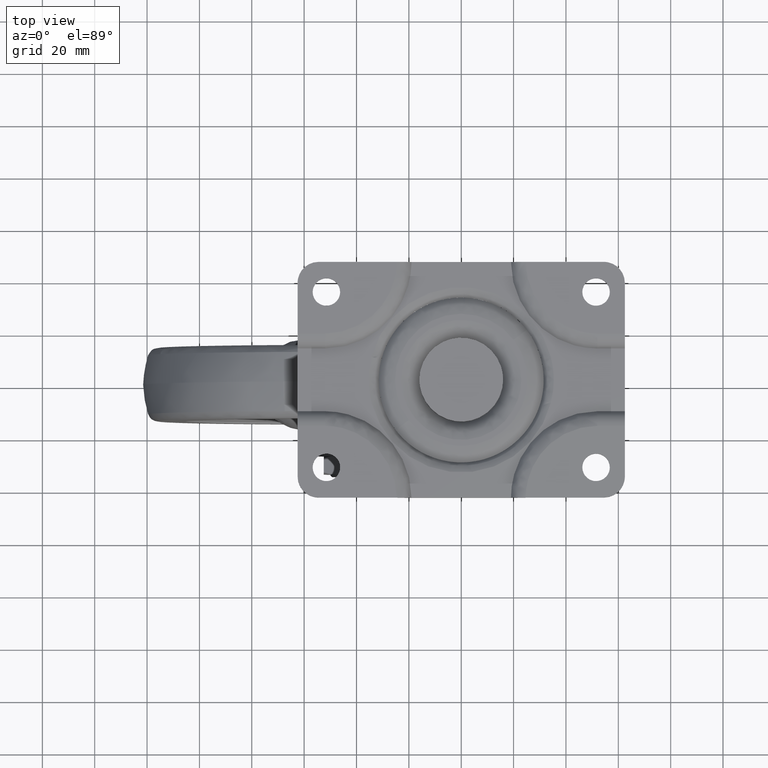
[diagram: clean part render]
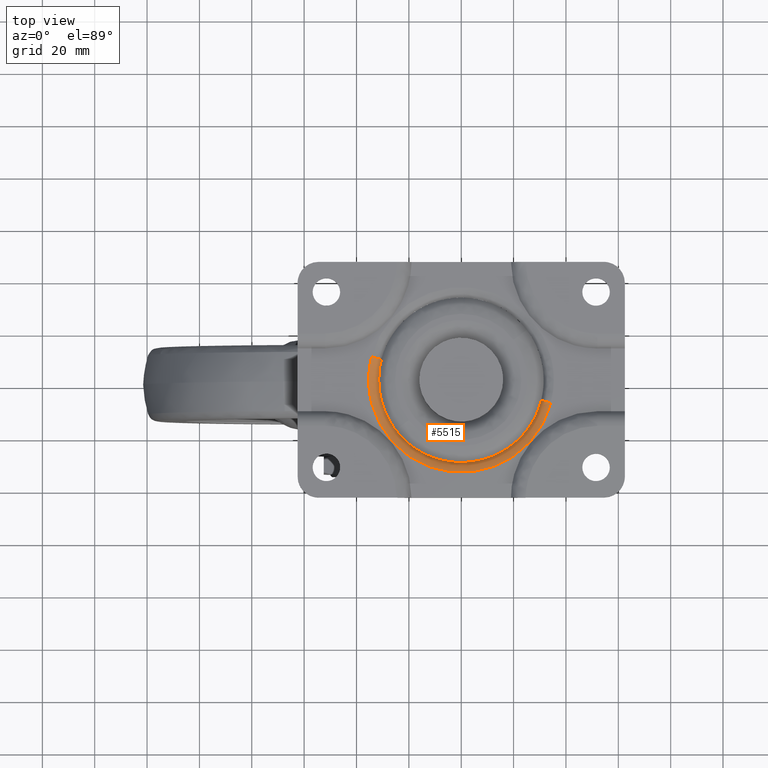
[diagram: same view with one face highlighted and labeled with its STEP entity id]
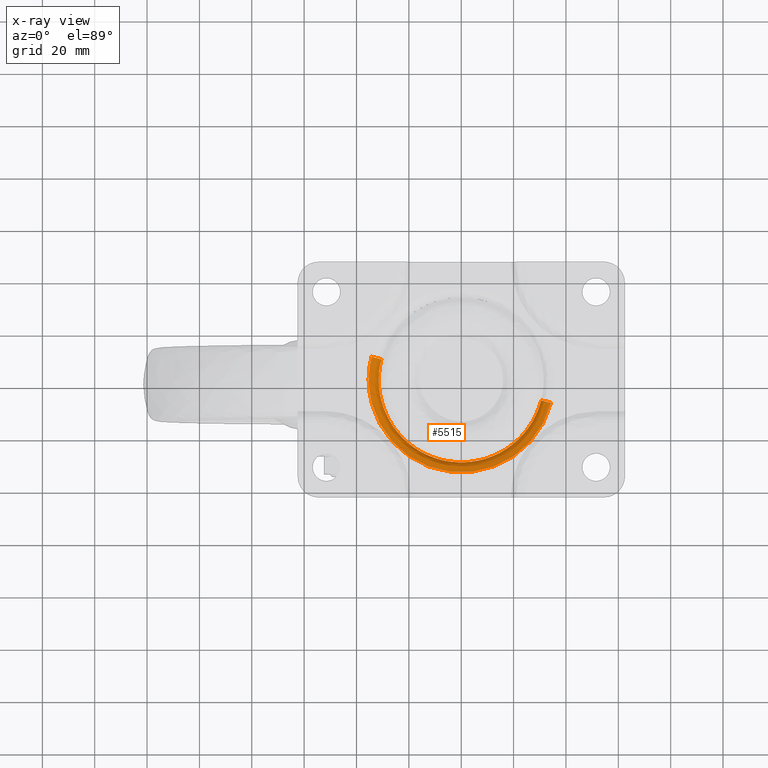
[diagram: x-ray of the same camera — body ghosted, the highlighted face saturated]
A machine part, top view. The second image highlights one B-rep face of the part: STEP entity #5515.
The next image is the same camera in x-ray: the body ghosted, the highlighted face saturated — about 0% of this face is hidden behind the body in this view.
In plain terms, the highlighted face is a freeform B-spline surface patch.
Its self-contained STEP definition (entity closure, byte-faithful):
#5373=CARTESIAN_POINT('',(30.459387060266753,-7.820724036173982,-7.235624588486035));
#5374=CARTESIAN_POINT('',(22.638663024092768,-38.280433096440824,-7.235624588486035));
#5375=CARTESIAN_POINT('',(-7.821046036174077,-30.459709060266846,-7.235624588486035));
#5376=CARTESIAN_POINT('',(-38.280755096440913,-22.638985024092889,-7.235624588486035));
#5377=CARTESIAN_POINT('',(-30.460031060266939,7.820724036173993,-7.235624588486035));
#5378=CARTESIAN_POINT('',(31.108187220650859,-7.987307603960204,-3.794904233700928));
#5379=CARTESIAN_POINT('',(23.120879616690647,-39.095816824611163,-3.794904233700927));
#5380=CARTESIAN_POINT('',(-7.987629603960300,-31.108509220650969,-3.794904233700928));
#5381=CARTESIAN_POINT('',(-39.096138824611245,-23.121201616690772,-3.794904233700927));
#5382=CARTESIAN_POINT('',(-31.108831220651048,7.987307603960215,-3.794904233700928));
#5383=CARTESIAN_POINT('',(34.497136885274941,-8.857441985318511,-4.007353338255136));
#5384=CARTESIAN_POINT('',(25.639694899956435,-43.354900870593561,-4.007353338255134));
#5385=CARTESIAN_POINT('',(-8.857763985318606,-34.497458885275030,-4.007353338255136));
#5386=CARTESIAN_POINT('',(-43.355222870593629,-25.640016899956549,-4.007353338255134));
#5387=CARTESIAN_POINT('',(-34.497780885275141,8.857441985318525,-4.007353338255136));
#5395=(BOUNDED_SURFACE()B_SPLINE_SURFACE(2,2,((#5373,#5378,#5383),(#5374,#5379,#5384),(#5375,#5380,#5385),(#5376,#5381,#5386),(#5377,#5382,#5387)),.UNSPECIFIED.,.F.,.F.,.U.)B_SPLINE_SURFACE_WITH_KNOTS((3,2,3),(3,3),(0.0,59.011206930497060,118.022413860994110),(0.0,6.018624252274136),.UNSPECIFIED.)GEOMETRIC_REPRESENTATION_ITEM()RATIONAL_B_SPLINE_SURFACE(((0.918773196973725,0.689567341193939,0.914988786707309),(0.649670757952564,0.487597743043012,0.646994775790390),(0.918773196973725,0.689567341193939,0.914988786707309),(0.649670757952564,0.487597743043012,0.646994775790390),(0.918773196973725,0.689567341193939,0.914988786707309)))REPRESENTATION_ITEM('')SURFACE());
#5396=CARTESIAN_POINT('',(-31.501322000000080,0.0,-6.999999999999996));
#5397=VERTEX_POINT('',#5396);
#5398=CARTESIAN_POINT('',(30.511016158766719,-7.833980135637761,-6.999999999742550));
#5399=VERTEX_POINT('',#5398);
#5400=CARTESIAN_POINT('',(-31.501322000000080,0.0,-6.999999999999996));
#5401=CARTESIAN_POINT('',(-31.501790817973710,-2.311732631342839,-6.999999999998817));
#5402=CARTESIAN_POINT('',(-31.088271400987360,-6.045803637751154,-6.999999999995160));
#5403=CARTESIAN_POINT('',(-29.586934244043540,-11.115780984329129,-6.999999999986460));
#5404=CARTESIAN_POINT('',(-27.880941412997409,-14.845110050429019,-6.999999999977546));
#5405=CARTESIAN_POINT('',(-25.719032414176791,-18.323970982086671,-6.999999999966873));
#5406=CARTESIAN_POINT('',(-23.447550011363109,-21.147866238814100,-6.999999999956292));
#5407=CARTESIAN_POINT('',(-20.648545536434298,-23.888352644255718,-6.999999999943256));
#5408=CARTESIAN_POINT('',(-17.259668872318930,-26.498630838447902,-6.999999999928157));
#5409=CARTESIAN_POINT('',(-13.248366479177200,-28.710226283311869,-6.999999999910570));
#5410=CARTESIAN_POINT('',(-9.237108210274469,-30.193820568891301,-6.999999999893439));
#5411=CARTESIAN_POINT('',(-5.139125335318765,-31.178270852276849,-6.999999999876176));
#5412=CARTESIAN_POINT('',(-0.701028254554308,-31.624785785162331,-6.999999999857815));
#5413=CARTESIAN_POINT('',(3.690645840593338,-31.370546824207480,-6.999999999839994));
#5414=CARTESIAN_POINT('',(7.541095398097164,-30.650647788985481,-6.999999999824639));
#5415=CARTESIAN_POINT('',(11.518265644429709,-29.442790125497631,-6.999999999809000));
#5416=CARTESIAN_POINT('',(15.714089066124050,-27.458943304779019,-6.999999999792888));
#5417=CARTESIAN_POINT('',(19.386628811385101,-24.932507091864679,-6.999999999779179));
#5418=CARTESIAN_POINT('',(22.314110123416569,-22.329739618259719,-6.999999999768545));
#5419=CARTESIAN_POINT('',(25.050443125573501,-19.279330378739211,-6.999999999758926));
#5420=CARTESIAN_POINT('',(28.213965686527509,-14.526355140746199,-6.999999999748782));
#5421=CARTESIAN_POINT('',(29.848345323288932,-10.417783734720951,-6.999999999743430));
#5422=CARTESIAN_POINT('',(30.511016158766719,-7.833980135637761,-6.999999999742550));
#5423=B_SPLINE_CURVE_WITH_KNOTS('',3,(#5400,#5401,#5402,#5403,#5404,#5405,#5406,#5407,#5408,#5409,#5410,#5411,#5412,#5413,#5414,#5415,#5416,#5417,#5418,#5419,#5420,#5421,#5422),.UNSPECIFIED.,.F.,.U.,(4,1,1,1,1,1,1,1,1,1,1,1,1,1,1,1,1,1,1,1,4),(0.000000181971430,6.935065138759427,11.202897494854920,15.826385880511941,19.205071203368291,23.472904137936620,26.673770546381022,30.941604649964749,36.276352928253537,40.366376851034843,43.745075679492921,48.901898656017913,53.703148826728743,56.903925650583240,60.638258460397800,66.150850037936308,70.774332590162800,73.975182112631643,77.887336312377599,83.044293195163618,91.046366253759317),.UNSPECIFIED.);
#5424=EDGE_CURVE('',#5397,#5399,#5423,.T.);
#5425=ORIENTED_EDGE('',*,*,#5424,.F.);
#5426=CARTESIAN_POINT('',(-30.511660158766912,7.833980135637768,-6.999999999742550));
#5427=VERTEX_POINT('',#5426);
#5428=CARTESIAN_POINT('',(-30.511660158766908,7.833980135637769,-6.999999999742550));
#5429=CARTESIAN_POINT('',(-31.501322000032278,3.979501750460699,-6.999999999871273));
#5430=CARTESIAN_POINT('',(-31.501322000000080,0.0,-6.999999999999996));
#5438=(BOUNDED_CURVE()B_SPLINE_CURVE(2,(#5428,#5429,#5430),.UNSPECIFIED.,.F.,.U.)B_SPLINE_CURVE_WITH_KNOTS((3,3),(0.957556761756602,1.0),.UNSPECIFIED.)CURVE()GEOMETRIC_REPRESENTATION_ITEM()RATIONAL_B_SPLINE_CURVE((0.917433344553731,0.950274653336100,1.0))REPRESENTATION_ITEM(''));
#5439=EDGE_CURVE('',#5427,#5397,#5438,.T.);
#5440=ORIENTED_EDGE('',*,*,#5439,.F.);
#5441=CARTESIAN_POINT('',(-34.262966609970732,8.797151926626988,-4.000000000000001));
#5442=VERTEX_POINT('',#5441);
#5443=CARTESIAN_POINT('',(-30.511660158766908,7.833980135637768,-6.999999999742549));
#5444=CARTESIAN_POINT('',(-31.261921449165509,8.026614493862381,-4.000000000968425));
#5445=CARTESIAN_POINT('',(-34.262966609970739,8.797151926626988,-4.000000000000002));
#5453=(BOUNDED_CURVE()B_SPLINE_CURVE(2,(#5443,#5444,#5445),.UNSPECIFIED.,.F.,.U.)B_SPLINE_CURVE_WITH_KNOTS((3,3),(-1.697281544129961,-0.315370897140359),.UNSPECIFIED.)CURVE()GEOMETRIC_REPRESENTATION_ITEM()RATIONAL_B_SPLINE_CURVE((0.898892835664572,0.709275833897962,0.895452162382878))REPRESENTATION_ITEM(''));
#5454=EDGE_CURVE('',#5427,#5442,#5453,.T.);
#5455=ORIENTED_EDGE('',*,*,#5454,.T.);
#5456=CARTESIAN_POINT('',(-35.374305346207493,0.0,-4.0));
#5457=VERTEX_POINT('',#5456);
#5458=CARTESIAN_POINT('',(-35.374305346207493,0.0,-4.0));
#5459=CARTESIAN_POINT('',(-35.374305345602011,4.468773329132926,-4.000000000000001));
#5460=CARTESIAN_POINT('',(-34.262966609970725,8.797151926626988,-4.000000000000002));
#5468=(BOUNDED_CURVE()B_SPLINE_CURVE(2,(#5458,#5459,#5460),.UNSPECIFIED.,.F.,.U.)B_SPLINE_CURVE_WITH_KNOTS((3,3),(0.0,0.042443238243170),.UNSPECIFIED.)CURVE()GEOMETRIC_REPRESENTATION_ITEM()RATIONAL_B_SPLINE_CURVE((1.0,0.950274653336367,0.917433344554084))REPRESENTATION_ITEM(''));
#5469=EDGE_CURVE('',#5457,#5442,#5468,.T.);
#5470=ORIENTED_EDGE('',*,*,#5469,.F.);
#5471=CARTESIAN_POINT('',(34.262322609970553,-8.797151926626988,-4.000000000000001));
#5472=VERTEX_POINT('',#5471);
#5473=CARTESIAN_POINT('',(34.262322609970553,-8.797151926626988,-4.000000000000001));
#5474=CARTESIAN_POINT('',(33.534714095573356,-11.634180080977259,-4.000000000000004));
#5475=CARTESIAN_POINT('',(32.057691186014623,-15.377848176721560,-3.999999999999996));
#5476=CARTESIAN_POINT('',(29.294550186446241,-19.936244150494961,-4.000000000000013));
#5477=CARTESIAN_POINT('',(26.443491652657549,-23.714840025550519,-3.999999999999946));
#5478=CARTESIAN_POINT('',(22.886847209005690,-27.157157050194410,-4.000000000000089));
#5479=CARTESIAN_POINT('',(19.079975732784071,-29.855410070380820,-3.999999999999882));
#5480=CARTESIAN_POINT('',(15.606367943409531,-31.834519644199720,-4.000000000000095));
#5481=CARTESIAN_POINT('',(11.123859792633819,-33.741289996251723,-3.999999999999917));
#5482=CARTESIAN_POINT('',(6.126619129266570,-34.970820640343582,-4.000000000000018));
#5483=CARTESIAN_POINT('',(1.148811740625232,-35.442441259187163,-3.999999999999999));
#5484=CARTESIAN_POINT('',(-2.718518954975604,-35.338486828884697,-4.000000000000001));
#5485=CARTESIAN_POINT('',(-6.745913618205182,-34.795029924948217,-4.000000000000001));
#5486=CARTESIAN_POINT('',(-10.113920613875999,-33.965880996572672,-3.999999999999996));
#5487=CARTESIAN_POINT('',(-14.062225193867841,-32.543339862914102,-4.000000000000001));
#5488=CARTESIAN_POINT('',(-18.191409781597589,-30.504240148604630,-4.000000000000063));
#5489=CARTESIAN_POINT('',(-22.285566203944001,-27.618479025491830,-3.999999999999789));
#5490=CARTESIAN_POINT('',(-26.325934347152529,-23.837507808421371,-4.000000000000016));
#5491=CARTESIAN_POINT('',(-29.631658885961240,-19.631589663524188,-4.000000000000132));
#5492=CARTESIAN_POINT('',(-32.303370884089126,-14.702742092769061,-3.999999999999717));
#5493=CARTESIAN_POINT('',(-33.906192989298077,-10.387399483369959,-4.000000000000323));
#5494=CARTESIAN_POINT('',(-35.066694073997532,-5.524575255828496,-3.999999999999949));
#5495=CARTESIAN_POINT('',(-35.374542032314700,-2.129986667119259,-3.999999999999691));
#5496=CARTESIAN_POINT('',(-35.374305346207493,0.0,-4.0));
#5497=B_SPLINE_CURVE_WITH_KNOTS('',3,(#5473,#5474,#5475,#5476,#5477,#5478,#5479,#5480,#5481,#5482,#5483,#5484,#5485,#5486,#5487,#5488,#5489,#5490,#5491,#5492,#5493,#5494,#5495,#5496),.UNSPECIFIED.,.F.,.U.,(4,1,1,1,1,1,1,1,1,1,1,1,1,1,1,1,1,1,1,1,1,4),(0.000000330531677,8.786266315806685,11.981274750577780,15.975037437811860,22.964148004782960,26.758246928298060,29.953238578178428,34.945524099604313,41.335488134991607,45.329336588993250,49.921886609835589,52.917289936262193,57.510090389933588,60.305743282697833,65.497695434977800,71.288651312165200,75.282438703149708,82.071840865896434,87.263751572236004,92.056263133159362,95.850423431196603,102.240330261324500),.UNSPECIFIED.);
#5498=EDGE_CURVE('',#5472,#5457,#5497,.T.);
#5499=ORIENTED_EDGE('',*,*,#5498,.F.);
#5500=CARTESIAN_POINT('',(30.511016158766729,-7.833980135637762,-6.999999999742549));
#5501=CARTESIAN_POINT('',(31.261277449165323,-8.026614493862377,-4.000000000968412));
#5502=CARTESIAN_POINT('',(34.262322609970553,-8.797151926626988,-4.000000000000001));
#5510=(BOUNDED_CURVE()B_SPLINE_CURVE(2,(#5500,#5501,#5502),.UNSPECIFIED.,.F.,.U.)B_SPLINE_CURVE_WITH_KNOTS((3,3),(-1.697281544129961,-0.315370897140355),.UNSPECIFIED.)CURVE()GEOMETRIC_REPRESENTATION_ITEM()RATIONAL_B_SPLINE_CURVE((0.898892835664572,0.709275833897961,0.895452162382879))REPRESENTATION_ITEM(''));
#5511=EDGE_CURVE('',#5399,#5472,#5510,.T.);
#5512=ORIENTED_EDGE('',*,*,#5511,.F.);
#5513=EDGE_LOOP('',(#5425,#5440,#5455,#5470,#5499,#5512));
#5514=FACE_OUTER_BOUND('',#5513,.T.);
#5515=ADVANCED_FACE('',(#5514),#5395,.T.);